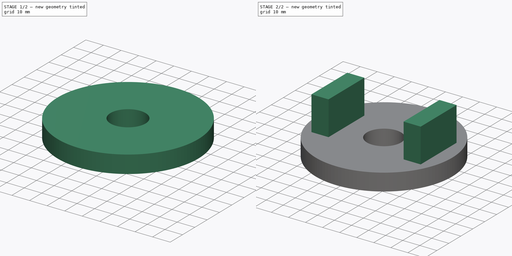
[diagram: build sequence overview — one tinted view per stage of 2, left to right]
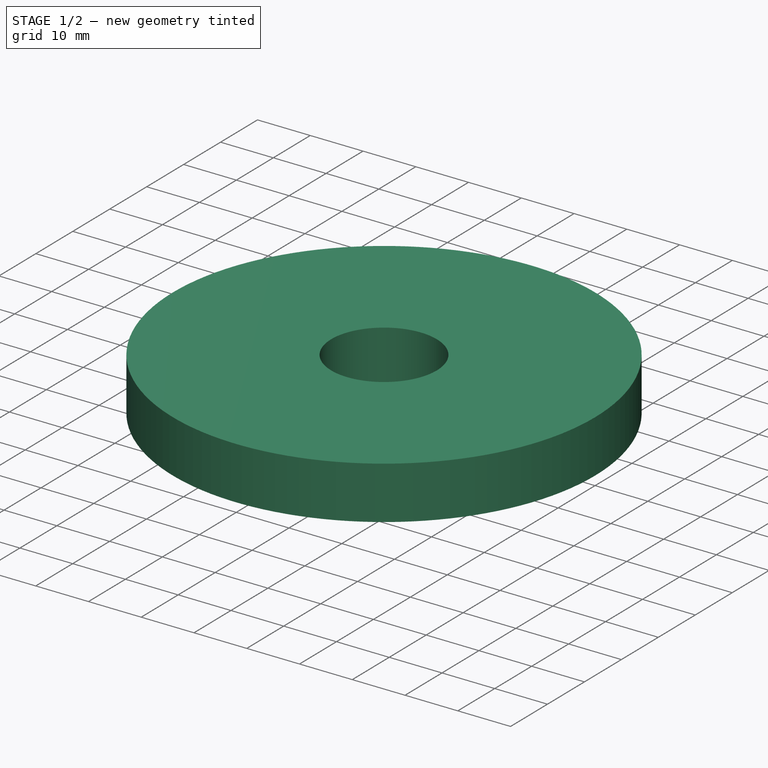
[diagram: stage 1 of 2 — iso view after this stage's code; geometry added in this stage tinted green]
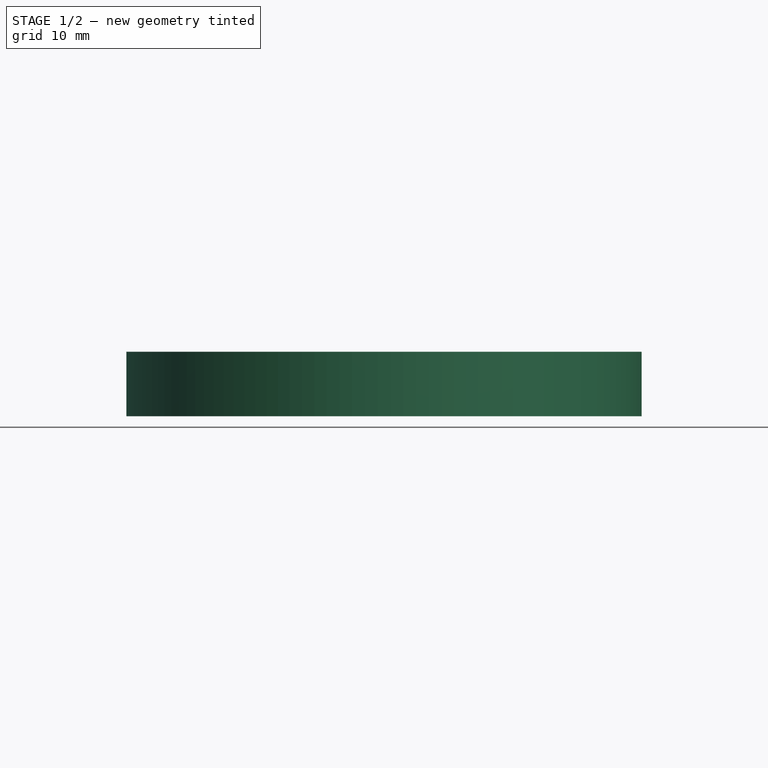
[diagram: stage 1 of 2 — front view after this stage's code; geometry added in this stage tinted green]
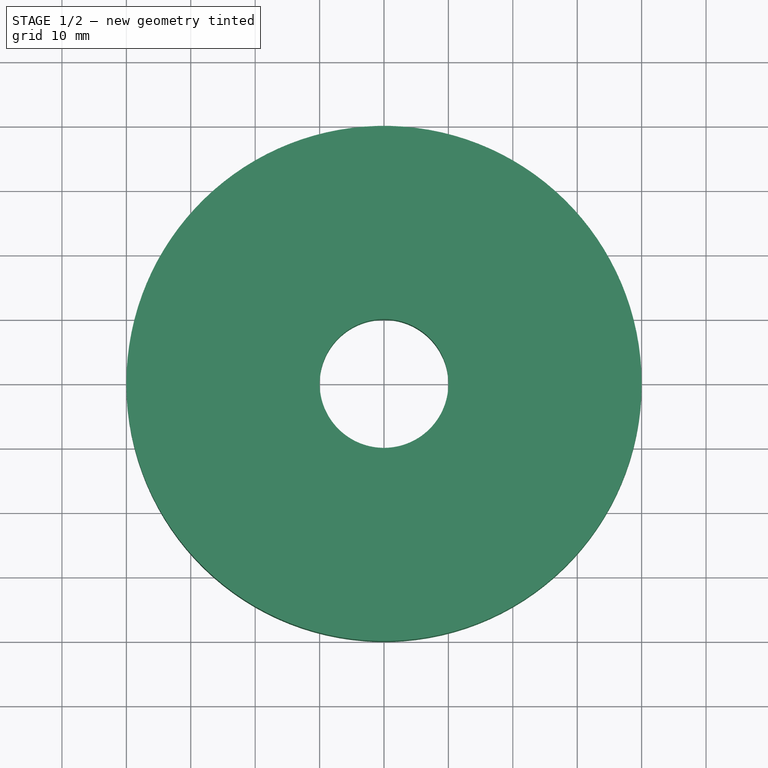
[diagram: stage 1 of 2 — top view after this stage's code; geometry added in this stage tinted green]
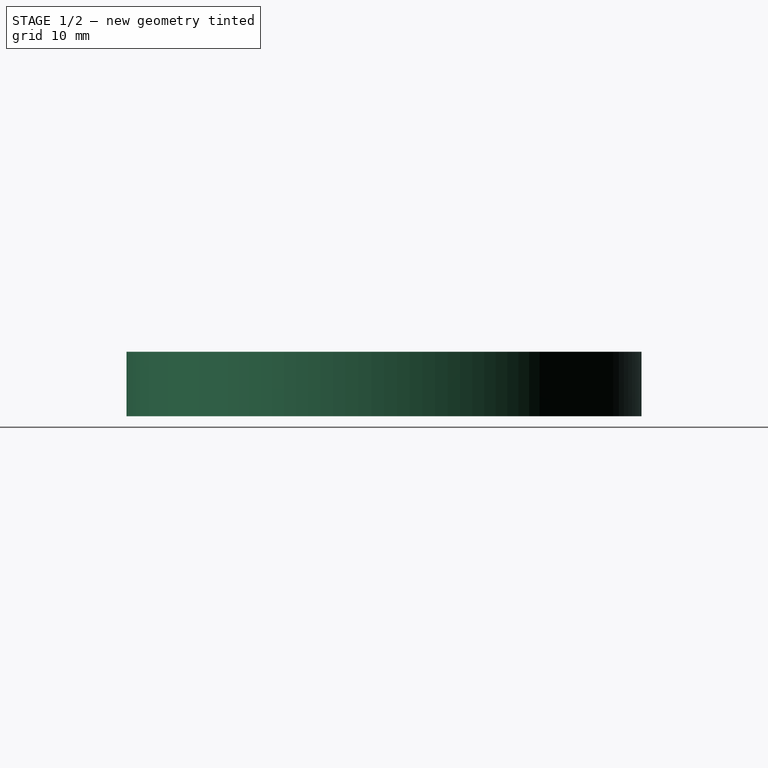
[diagram: stage 1 of 2 — right view after this stage's code; geometry added in this stage tinted green]
FCSTD DOCUMENT  (FreeCAD 0.15R4671 (Git))
Label: SGB_NutLock
License: All rights reserved
LicenseURL: http://en.wikipedia.org/wiki/All_rights_reserved
objects: Sketcher::SketchObject×2, PartDesign::Pad×2
note: 6 computed .brp shape members not serialized (recipe doc carries the construction recipe); baked Part::Feature solids carry a one-line shape summary decoded from their .brp

FEATURE [Sketcher::SketchObject] Sketch  label="BaseSketch"
  sketch-geometry (2):
    g0: Circle CenterX=0 CenterY=0 CenterZ=0 NormalX=0 NormalY=0 NormalZ=1 Radius=40
    g1: Circle CenterX=0 CenterY=0 CenterZ=0 NormalX=0 NormalY=0 NormalZ=1 Radius=10
  constraints (4):
    c: Coincident(g0,g-1)
    c: Coincident(g1,g-1)
    c: Radius(g1) = 10
    c: Radius(g0) = 40
FEATURE [PartDesign::Pad] Pad  label="Base"
  Length = 10
  Length2 = 100
  Sketch = -> Sketch
  Type = 0
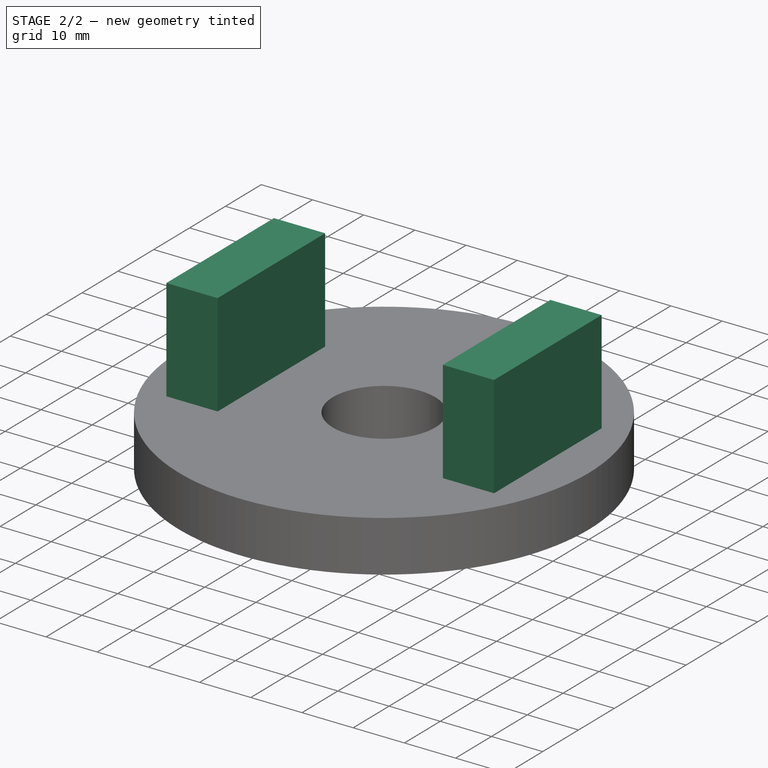
[diagram: stage 2 of 2 — iso view after this stage's code; geometry added in this stage tinted green]
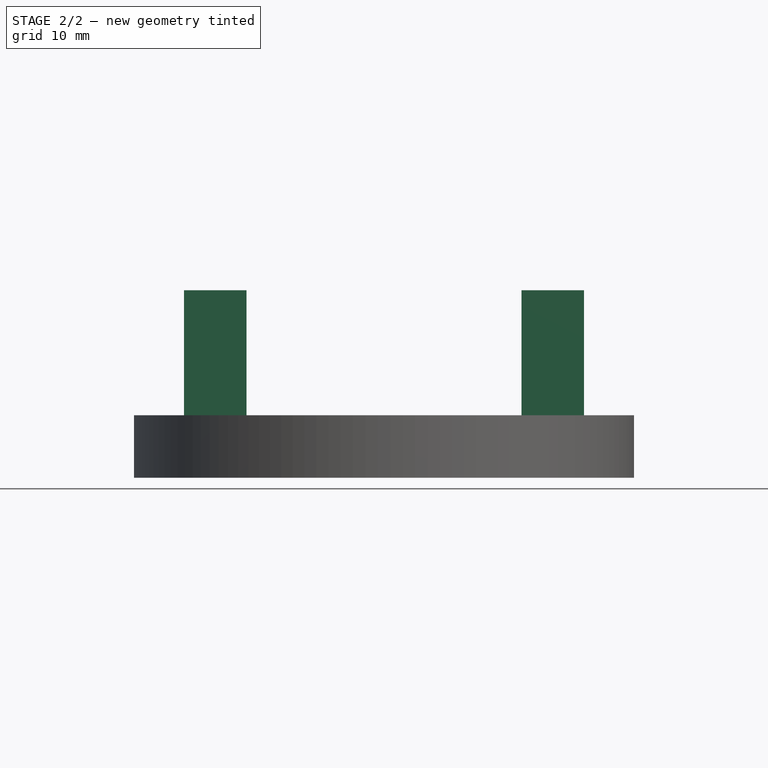
[diagram: stage 2 of 2 — front view after this stage's code; geometry added in this stage tinted green]
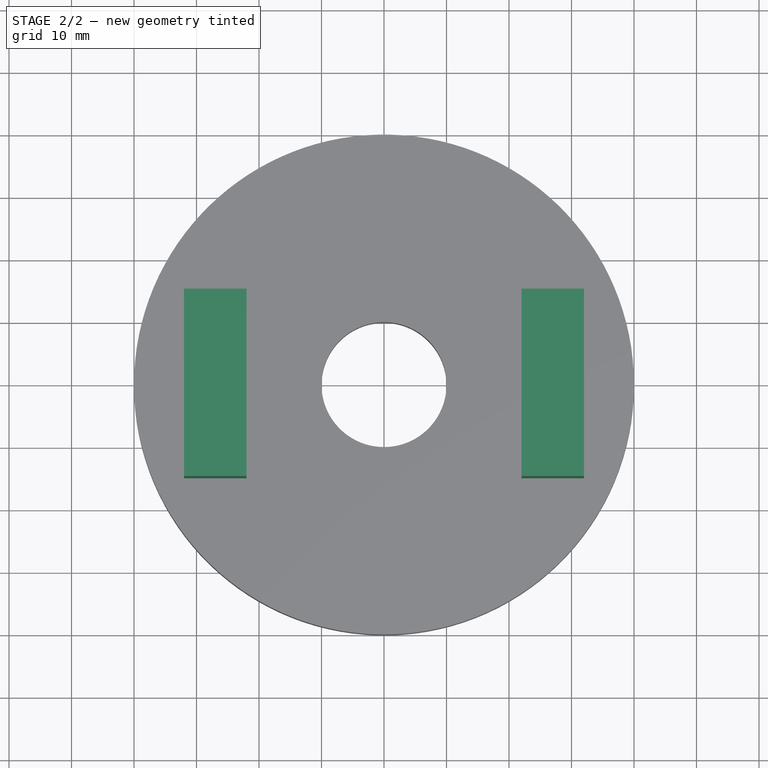
[diagram: stage 2 of 2 — top view after this stage's code; geometry added in this stage tinted green]
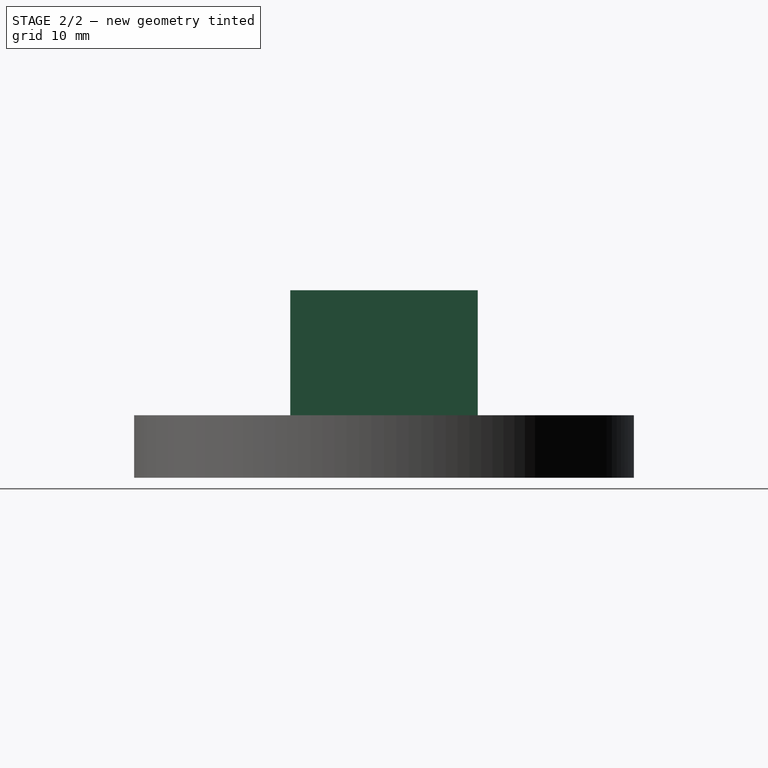
[diagram: stage 2 of 2 — right view after this stage's code; geometry added in this stage tinted green]
FEATURE [Sketcher::SketchObject] Sketch001  label="LoadSketch"
  Placement = pos=(0,0,10) rot=(0,0,1;0rad)
  Support = -> Pad [Face4]
  sketch-geometry (8):
    g0: LineSegment StartX=-32 StartY=15 StartZ=0 EndX=-22 EndY=15 EndZ=0
    g1: LineSegment StartX=-22 StartY=15 StartZ=0 EndX=-22 EndY=-15 EndZ=0
    g2: LineSegment StartX=-22 StartY=-15 StartZ=0 EndX=-32 EndY=-15 EndZ=0
    g3: LineSegment StartX=-32 StartY=-15 StartZ=0 EndX=-32 EndY=15 EndZ=0
    g4: LineSegment StartX=22 StartY=15 StartZ=0 EndX=32 EndY=15 EndZ=0
    g5: LineSegment StartX=32 StartY=15 StartZ=0 EndX=32 EndY=-15 EndZ=0
    g6: LineSegment StartX=32 StartY=-15 StartZ=0 EndX=22 EndY=-15 EndZ=0
    g7: LineSegment StartX=22 StartY=-15 StartZ=0 EndX=22 EndY=15 EndZ=0
  constraints (23):
    c: Coincident(g0,g1)
    c: Coincident(g1,g2)
    c: Coincident(g2,g3)
    c: Coincident(g3,g0)
    c: Horizontal(g0)
    c: Horizontal(g2)
    c: Vertical(g1)
    c: Vertical(g3)
    c: Coincident(g4,g5)
    c: Coincident(g5,g6)
    c: Coincident(g6,g7)
    c: Coincident(g7,g4)
    c: Horizontal(g4)
    c: Horizontal(g6)
    c: Vertical(g5)
    c: Vertical(g7)
    c: Equal(g7,g1)
    c: Equal(g4,g0)
    c: Symmetric(g4,g0,g-2)
    c: Symmetric(g4,g6,g-1)
    c: DistanceX(g-1,g4) = 22
    c: DistanceY(g5) = -30
    c: DistanceX(g6) = -10
FEATURE [PartDesign::Pad] Pad001  label="Load"
  Length = 20
  Length2 = 100
  Sketch = -> Sketch001
  Type = 0
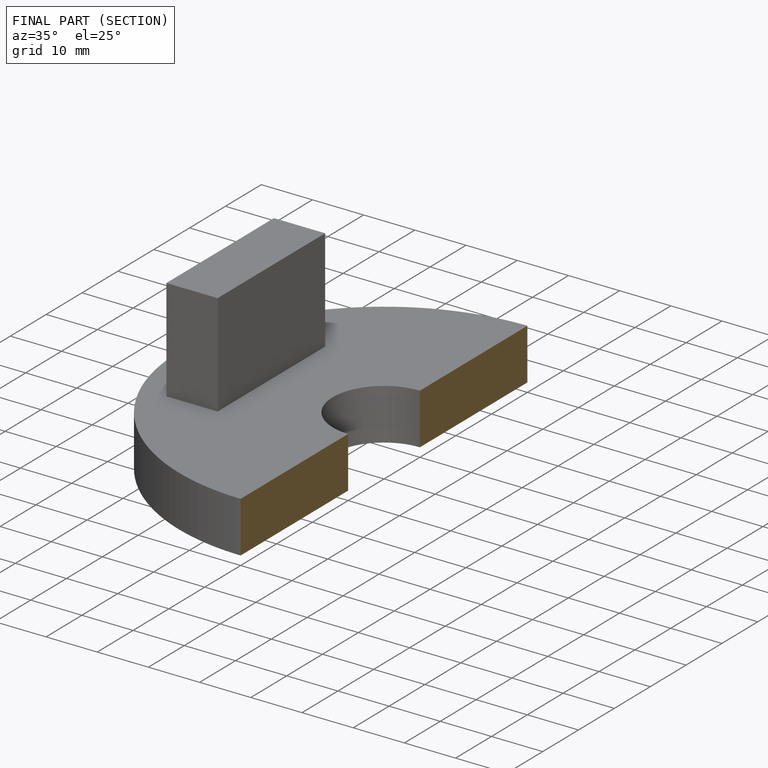
[diagram: finished part — half-section view (interior)]
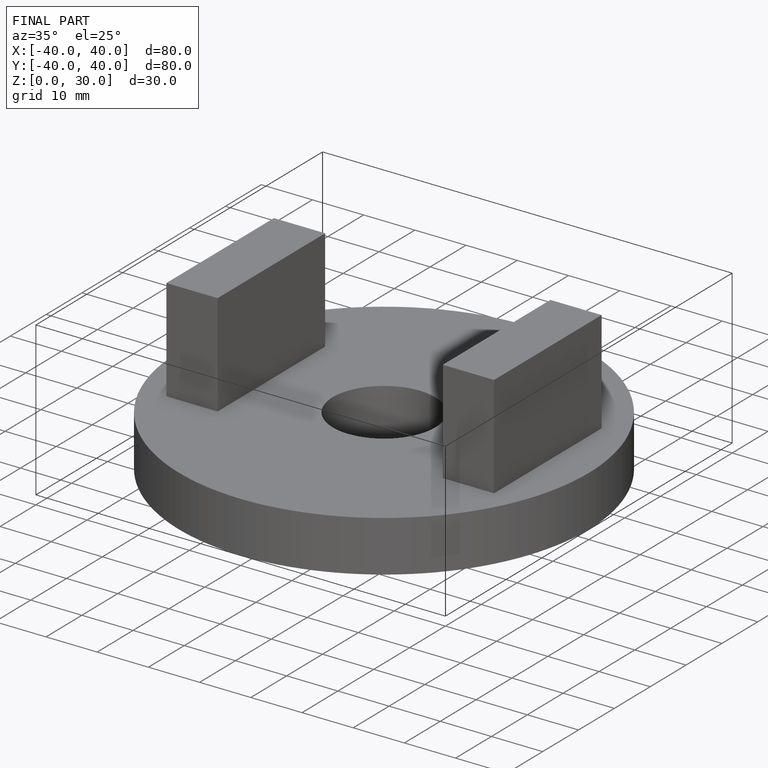
[diagram: finished part — iso view with bounding-box wireframe]
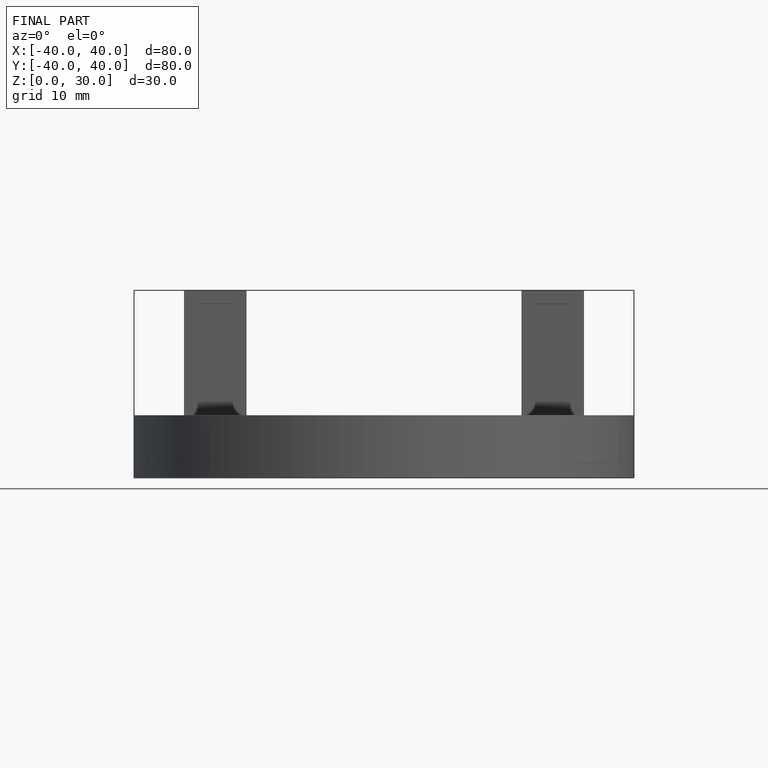
[diagram: finished part — front view with bounding-box wireframe]
